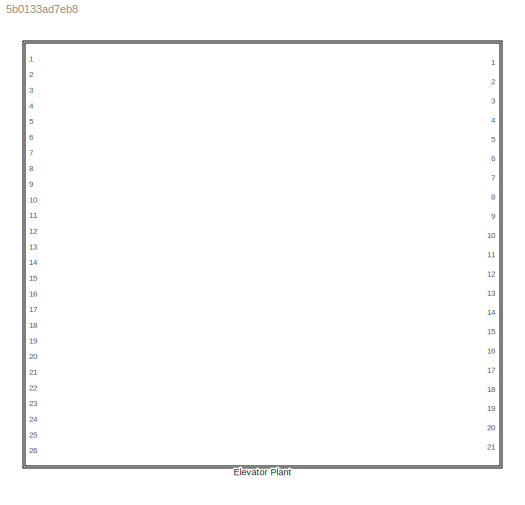
MODEL slx_5b0133ad7eb8
KIND model
CONFIG AbsTol = auto
CONFIG FixedStep = auto
CONFIG MaxStep = auto
CONFIG MinStep = auto
CONFIG RelTol = 1e-3
CONFIG SampleTimeConstraint = Unconstrained
CONFIG Solver = VariableStepAuto
CONFIG SolverMode = Auto
CONFIG SolverName = VariableStepAuto
CONFIG StartTime = 0.0
CONFIG StopTime = 10.0
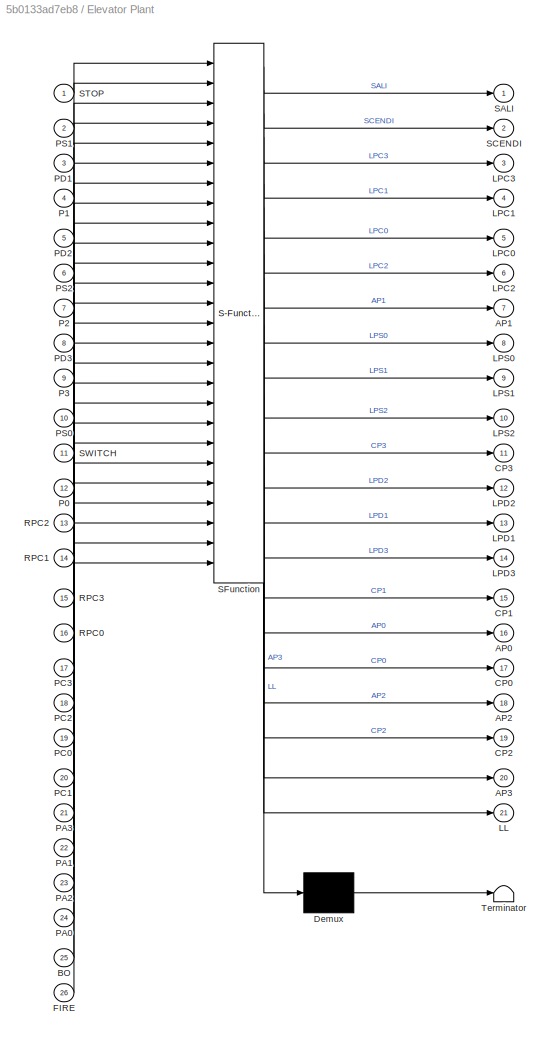
BLOCK [SubSystem] Elevator Plant
  ErrorFcn = Stateflow.Translate.translate
  PermitHierarchicalResolution = ExplicitOnly
  Ports = [26, 21]
  RequestExecContextInheritance = off
  SFBlockType = Chart
  TreatAsAtomicUnit = on
  Variant = off
BLOCK [Demux] Elevator Plant/ Demux 
  Outputs = 1
  Ports = [1, 1]
BLOCK [S-Function] Elevator Plant/ SFunction 
  EnableBusSupport = on
  FunctionName = sf_sfun
  PortCounts = [26 22]
  Ports = [26, 22]
  SFunctionDeploymentMode = off
  Tag = Stateflow S-Function ElevatorPlant_Basic 3
BLOCK [Terminator] Elevator Plant/ Terminator 
BLOCK [Outport] Elevator Plant/AP0
  IconDisplay = Port number
  Port = 16
BLOCK [Outport] Elevator Plant/AP1
  IconDisplay = Port number
  Port = 7
BLOCK [Outport] Elevator Plant/AP2
  IconDisplay = Port number
  Port = 18
BLOCK [Outport] Elevator Plant/AP3
  IconDisplay = Port number
  Port = 20
BLOCK [Inport] Elevator Plant/BO
  IconDisplay = Port number
  Port = 25
BLOCK [Outport] Elevator Plant/CP0
  IconDisplay = Port number
  Port = 17
BLOCK [Outport] Elevator Plant/CP1
  IconDisplay = Port number
  Port = 15
BLOCK [Outport] Elevator Plant/CP2
  IconDisplay = Port number
  Port = 19
BLOCK [Outport] Elevator Plant/CP3
  IconDisplay = Port number
  Port = 11
BLOCK [Inport] Elevator Plant/FIRE
  IconDisplay = Port number
  Port = 26
BLOCK [Outport] Elevator Plant/LL
  IconDisplay = Port number
  Port = 21
BLOCK [Outport] Elevator Plant/LPC0
  IconDisplay = Port number
  Port = 5
BLOCK [Outport] Elevator Plant/LPC1
  IconDisplay = Port number
  Port = 4
BLOCK [Outport] Elevator Plant/LPC2
  IconDisplay = Port number
  Port = 6
BLOCK [Outport] Elevator Plant/LPC3
  IconDisplay = Port number
  Port = 3
BLOCK [Outport] Elevator Plant/LPD1
  IconDisplay = Port number
  Port = 13
BLOCK [Outport] Elevator Plant/LPD2
  IconDisplay = Port number
  Port = 12
BLOCK [Outport] Elevator Plant/LPD3
  IconDisplay = Port number
  Port = 14
BLOCK [Outport] Elevator Plant/LPS0
  IconDisplay = Port number
  Port = 8
BLOCK [Outport] Elevator Plant/LPS1
  IconDisplay = Port number
  Port = 9
BLOCK [Outport] Elevator Plant/LPS2
  IconDisplay = Port number
  Port = 10
BLOCK [Inport] Elevator Plant/P0
  IconDisplay = Port number
  Port = 12
BLOCK [Inport] Elevator Plant/P1
  IconDisplay = Port number
  Port = 4
BLOCK [Inport] Elevator Plant/P2
  IconDisplay = Port number
  Port = 7
BLOCK [Inport] Elevator Plant/P3
  IconDisplay = Port number
  Port = 9
BLOCK [Inport] Elevator Plant/PA0
  IconDisplay = Port number
  Port = 24
BLOCK [Inport] Elevator Plant/PA1
  IconDisplay = Port number
  Port = 22
BLOCK [Inport] Elevator Plant/PA2
  IconDisplay = Port number
  Port = 23
BLOCK [Inport] Elevator Plant/PA3
  IconDisplay = Port number
  Port = 21
BLOCK [Inport] Elevator Plant/PC0
  IconDisplay = Port number
  Port = 19
BLOCK [Inport] Elevator Plant/PC1
  IconDisplay = Port number
  Port = 20
BLOCK [Inport] Elevator Plant/PC2
  IconDisplay = Port number
  Port = 18
BLOCK [Inport] Elevator Plant/PC3
  IconDisplay = Port number
  Port = 17
BLOCK [Inport] Elevator Plant/PD1
  IconDisplay = Port number
  Port = 3
BLOCK [Inport] Elevator Plant/PD2
  IconDisplay = Port number
  Port = 5
BLOCK [Inport] Elevator Plant/PD3
  IconDisplay = Port number
  Port = 8
BLOCK [Inport] Elevator Plant/PS0
  IconDisplay = Port number
  Port = 10
BLOCK [Inport] Elevator Plant/PS1
  IconDisplay = Port number
  Port = 2
BLOCK [Inport] Elevator Plant/PS2
  IconDisplay = Port number
  Port = 6
BLOCK [Inport] Elevator Plant/RPC0
  IconDisplay = Port number
  Port = 16
BLOCK [Inport] Elevator Plant/RPC1
  IconDisplay = Port number
  Port = 14
BLOCK [Inport] Elevator Plant/RPC2
  IconDisplay = Port number
  Port = 13
BLOCK [Inport] Elevator Plant/RPC3
  IconDisplay = Port number
  Port = 15
BLOCK [Outport] Elevator Plant/SALI
  IconDisplay = Port number
BLOCK [Outport] Elevator Plant/SCENDI
  IconDisplay = Port number
  Port = 2
BLOCK [Inport] Elevator Plant/STOP
  IconDisplay = Port number
BLOCK [Inport] Elevator Plant/SWITCH
  IconDisplay = Port number
  Port = 11
CHART Elevator Plant states=691 transitions=2432
  STATE_LABEL 'Init_procedure\n\n'
  STATE_LABEL 'BLK_Init\n%BLK(LPS0)\n%BLK(LPD1)\n%BLK(LPS1)\n%BLK(LPD2)\n%BLK(LPS2)\n%BLK(LPD3)'
  STATE_LABEL 'Replacing\nen:\nSCENDI=true;\n'
  STATE_LABEL 'Closing_all_doors'
  STATE_LABEL 'Closing0'
  STATE_LABEL 'Timer_close'
  STATE_LABEL 'Set_tmr\nen: Q_cl=true;'
  STATE_LABEL 'Set\nen:PT_cl=5;\nIN_cl=true;'
  STATE_LABEL 'Counting\nen:ET_cl = ET_cl + 1;\nQ_cl=false;'
  STATE_LABEL '[ET_cl==PT_cl]'
  STATE_LABEL '[ET_cl<PT_cl]'
  STATE_LABEL 'BUTT_Temp\n'
  STATE_LABEL 'Butt_temp0\nen: BUT_TEMP = 0;\n FLAG_BT=true;\n LPC0=true;'
  STATE_LABEL 'Butt_temp1\nen: BUT_TEMP = 1;\n FLAG_BT=true;\n LPC1=true;'
  STATE_LABEL 'Butt_temp2\nen: BUT_TEMP = 2;\n FLAG_BT=true;\n LPC2=true;'
  STATE_LABEL 'Butt_temp3\nen: BUT_TEMP = 3;\n FLAG_BT=true;\n LPC3=true;'
  STATE_LABEL '[not(FLAG_BT)]'
  STATE_LABEL '[P0]'
  STATE_LABEL '[P1]'
  STATE_LABEL '[P2]'
  STATE_LABEL '[P3]'
  STATE_LABEL 'Closing\nen: CP0=Q_cl;\n'
  STATE_LABEL 'Stop_Closing\nen: CP0=false;\n LPS0=false;\n LPS1=false;\n LPD1=false;\n LPS2=false;\n LPD2=false;\n LPD3=false;\n FLAG_OD=false;\n OBS=false;\n ET_cl=0;\n IN_cl=false;\n'
  STATE_LABEL 'Flag_position\nen:FLAG=2;\nFLAG_BT=false;\nBUTTON=BUT_TEMP;'
  STATE_LABEL 'Closing1\nen:CP0=true;\n'
  STATE_LABEL 'Flag_floor\nen: FLAG=1;'
  STATE_LABEL 'Stop_Closing1\nen:CP0=false;'
  STATE_LABEL '[not(FLAG==0) && not(FLAG==4)]'
  STATE_LABEL '[not(PC0)]'
  STATE_LABEL '[FLAG_BT]'
  STATE_LABEL '[not(PC0)]'
  STATE_LABEL 'Closing1'
  STATE_LABEL 'BUTT_Temp\n'
  STATE_LABEL 'Butt_temp0\nen: BUT_TEMP = 0;\n FLAG_BT=true;\n LPC0=true;'
  STATE_LABEL 'Butt_temp1\nen: BUT_TEMP = 1;\n FLAG_BT=true;\n LPC1=true;'
  STATE_LABEL 'Butt_temp2\nen: BUT_TEMP = 2;\n FLAG_BT=true;\n LPC2=true;'
  STATE_LABEL 'Butt_temp3\nen: BUT_TEMP = 3;\n FLAG_BT=true;\n LPC3=true;'
  STATE_LABEL '[not(FLAG_BT)]'
  STATE_LABEL '[P0]'
  STATE_LABEL '[P1]'
